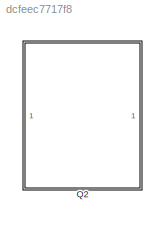
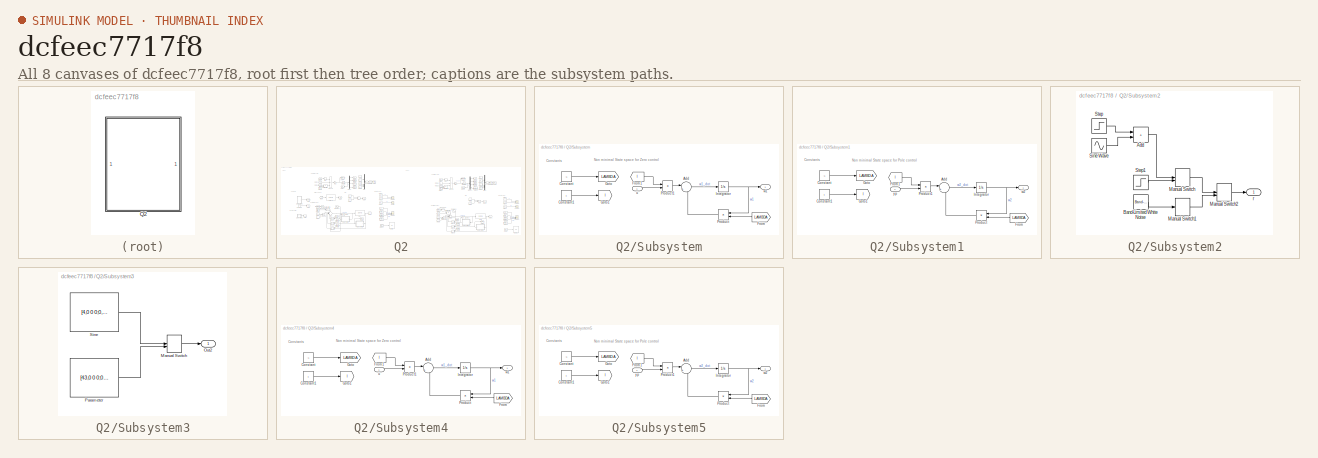
[diagram: thumbnail index - all 8 canvases of the model, root first then tree order]
MODEL slx_dcfeec7717f8
KIND model
CONFIG AbsTol = auto
CONFIG EnableMultiTasking = off
CONFIG FixedStep = 0.0001
CONFIG MaxStep = auto
CONFIG MinStep = auto
CONFIG RelTol = 1e-3
CONFIG SampleTimeConstraint = Unconstrained
CONFIG SolverName = VariableStepAuto
CONFIG StartTime = 0.0
CONFIG StopTime = 20
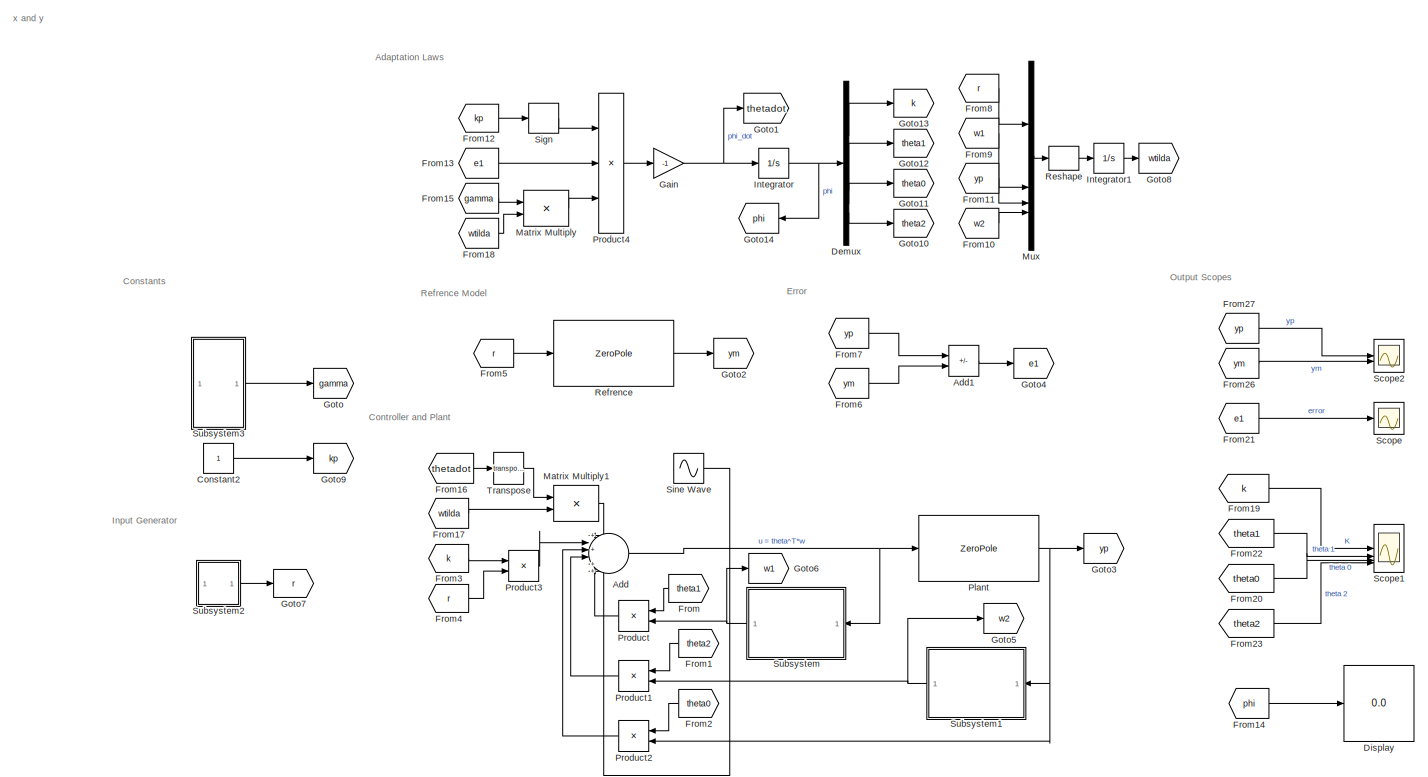
[diagram: Q2 - part 1/2, left side, full height]
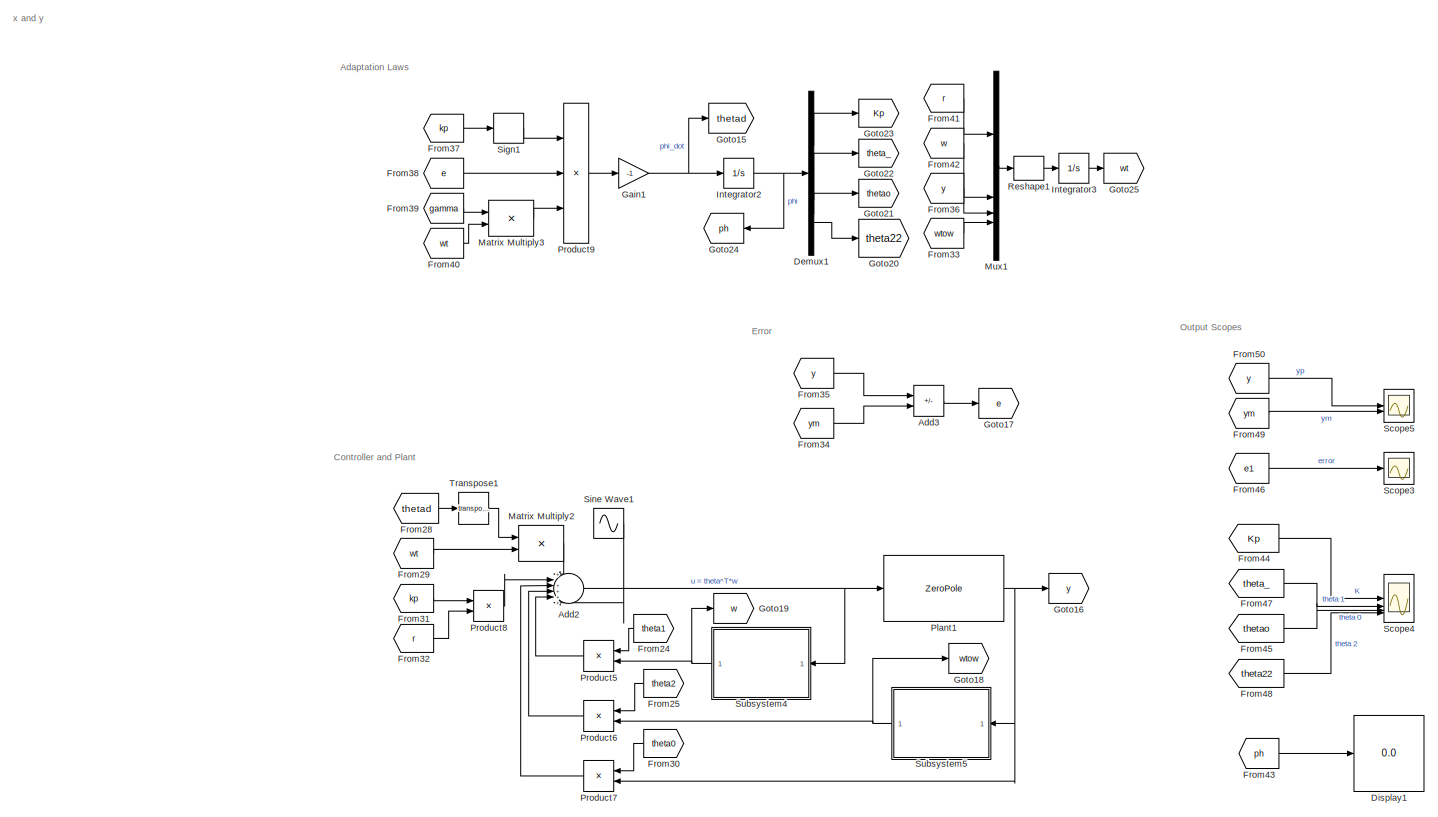
[diagram: Q2 - part 2/2, right side, full height]
BLOCK [SubSystem] Q2
BLOCK [Sum] Q2/Add
  Inputs = +|+|++++
BLOCK [Sum] Q2/Add1
  IconShape = rectangular
  Inputs = +-
BLOCK [Sum] Q2/Add2
  Inputs = +|+++++
BLOCK [Sum] Q2/Add3
  IconShape = rectangular
  Inputs = +-
BLOCK [Constant] Q2/Constant2
BLOCK [Demux] Q2/Demux
BLOCK [Demux] Q2/Demux1
BLOCK [Display] Q2/Display
  Decimation = 1
BLOCK [Display] Q2/Display1
  Decimation = 1
BLOCK [From] Q2/From
  GotoTag = theta1
  NameLocation = top
BLOCK [From] Q2/From1
  GotoTag = theta2
  NameLocation = top
BLOCK [From] Q2/From10
  GotoTag = w2
BLOCK [From] Q2/From11
  GotoTag = yp
BLOCK [From] Q2/From12
  GotoTag = kp
BLOCK [From] Q2/From13
  GotoTag = e1
BLOCK [From] Q2/From14
  GotoTag = phi
  NameLocation = top
BLOCK [From] Q2/From15
  GotoTag = gamma
BLOCK [From] Q2/From16
  GotoTag = thetadot
BLOCK [From] Q2/From17
  GotoTag = wtilda
BLOCK [From] Q2/From18
  GotoTag = wtilda
BLOCK [From] Q2/From19
  GotoTag = k
BLOCK [From] Q2/From2
  GotoTag = theta0
  NameLocation = top
BLOCK [From] Q2/From20
  GotoTag = theta0
BLOCK [From] Q2/From21
  GotoTag = e1
BLOCK [From] Q2/From22
  GotoTag = theta1
BLOCK [From] Q2/From23
  GotoTag = theta2
BLOCK [From] Q2/From24
  GotoTag = theta1
  NameLocation = top
BLOCK [From] Q2/From25
  GotoTag = theta2
  NameLocation = top
BLOCK [From] Q2/From26
  GotoTag = ym
BLOCK [From] Q2/From27
  GotoTag = yp
BLOCK [From] Q2/From28
  GotoTag = thetad
BLOCK [From] Q2/From29
  GotoTag = wt
BLOCK [From] Q2/From3
  GotoTag = k
BLOCK [From] Q2/From30
  GotoTag = theta0
  NameLocation = top
BLOCK [From] Q2/From31
  GotoTag = kp
BLOCK [From] Q2/From32
  GotoTag = r
BLOCK [From] Q2/From33
  GotoTag = wtow
BLOCK [From] Q2/From34
  GotoTag = ym
BLOCK [From] Q2/From35
  GotoTag = y
BLOCK [From] Q2/From36
  GotoTag = y
BLOCK [From] Q2/From37
  GotoTag = kp
BLOCK [From] Q2/From38
  GotoTag = e
BLOCK [From] Q2/From39
  GotoTag = gamma
BLOCK [From] Q2/From4
  GotoTag = r
BLOCK [From] Q2/From40
  GotoTag = wt
BLOCK [From] Q2/From41
  GotoTag = r
BLOCK [From] Q2/From42
  GotoTag = w
BLOCK [From] Q2/From43
  GotoTag = ph
  NameLocation = top
BLOCK [From] Q2/From44
  GotoTag = Kp
BLOCK [From] Q2/From45
  GotoTag = thetao
BLOCK [From] Q2/From46
  GotoTag = e1
BLOCK [From] Q2/From47
  GotoTag = theta_
BLOCK [From] Q2/From48
  GotoTag = theta22
BLOCK [From] Q2/From49
  GotoTag = ym
BLOCK [From] Q2/From5
  GotoTag = r
BLOCK [From] Q2/From50
  GotoTag = y
BLOCK [From] Q2/From6
  GotoTag = ym
BLOCK [From] Q2/From7
  GotoTag = yp
BLOCK [From] Q2/From8
  GotoTag = r
BLOCK [From] Q2/From9
  GotoTag = w1
BLOCK [Gain] Q2/Gain
  Gain = -1
BLOCK [Gain] Q2/Gain1
  Gain = -1
BLOCK [Goto] Q2/Goto
  GotoTag = gamma
BLOCK [Goto] Q2/Goto1
  GotoTag = thetadot
BLOCK [Goto] Q2/Goto10
  GotoTag = theta2
  NameLocation = top
BLOCK [Goto] Q2/Goto11
  GotoTag = theta0
  NameLocation = top
BLOCK [Goto] Q2/Goto12
  GotoTag = theta1
  NameLocation = top
BLOCK [Goto] Q2/Goto13
  GotoTag = k
BLOCK [Goto] Q2/Goto14
  GotoTag = phi
  NameLocation = top
BLOCK [Goto] Q2/Goto15
  GotoTag = thetad
BLOCK [Goto] Q2/Goto16
  GotoTag = y
BLOCK [Goto] Q2/Goto17
  GotoTag = e
BLOCK [Goto] Q2/Goto18
  GotoTag = wtow
BLOCK [Goto] Q2/Goto19
  GotoTag = w
BLOCK [Goto] Q2/Goto2
  GotoTag = ym
BLOCK [Goto] Q2/Goto20
  GotoTag = theta22
  NameLocation = top
BLOCK [Goto] Q2/Goto21
  GotoTag = thetao
  NameLocation = top
BLOCK [Goto] Q2/Goto22
  GotoTag = theta_
  NameLocation = top
BLOCK [Goto] Q2/Goto23
  GotoTag = Kp
BLOCK [Goto] Q2/Goto24
  GotoTag = ph
  NameLocation = top
BLOCK [Goto] Q2/Goto25
  GotoTag = wt
BLOCK [Goto] Q2/Goto3
  GotoTag = yp
BLOCK [Goto] Q2/Goto4
  GotoTag = e1
BLOCK [Goto] Q2/Goto5
  GotoTag = w2
BLOCK [Goto] Q2/Goto6
  GotoTag = w1
BLOCK [Goto] Q2/Goto7
  GotoTag = r
BLOCK [Goto] Q2/Goto8
  GotoTag = wtilda
BLOCK [Goto] Q2/Goto9
  GotoTag = kp
BLOCK [Integrator] Q2/Integrator
BLOCK [Integrator] Q2/Integrator1
BLOCK [Integrator] Q2/Integrator2
BLOCK [Integrator] Q2/Integrator3
BLOCK [Product] Q2/Matrix Multiply
  Multiplication = Matrix(*)
BLOCK [Product] Q2/Matrix Multiply1
  Multiplication = Matrix(*)
BLOCK [Product] Q2/Matrix Multiply2
  Multiplication = Matrix(*)
BLOCK [Product] Q2/Matrix Multiply3
  Multiplication = Matrix(*)
BLOCK [Mux] Q2/Mux
  DisplayOption = bar
BLOCK [Mux] Q2/Mux1
  DisplayOption = bar
BLOCK [ZeroPole] Q2/Plant
  Gain = 1/2.5
  Poles = [0 0]
  Zeros = []
BLOCK [ZeroPole] Q2/Plant1
  Gain = 1/0.03
  Poles = [0 0]
  Zeros = []
BLOCK [Product] Q2/Product
  NameLocation = top
BLOCK [Product] Q2/Product1
  NameLocation = top
BLOCK [Product] Q2/Product2
  NameLocation = top
BLOCK [Product] Q2/Product3
BLOCK [Product] Q2/Product4
  Inputs = 3
BLOCK [Product] Q2/Product5
  NameLocation = top
BLOCK [Product] Q2/Product6
  NameLocation = top
BLOCK [Product] Q2/Product7
  NameLocation = top
BLOCK [Product] Q2/Product8
BLOCK [Product] Q2/Product9
  Inputs = 3
BLOCK [ZeroPole] Q2/Refrence
  Gain = 1
  Poles = [-1 -1]
  Zeros = []
BLOCK [Reshape] Q2/Reshape
  OutputDimensionality = Column vector (2-D)
BLOCK [Reshape] Q2/Reshape1
  OutputDimensionality = Column vector (2-D)
BLOCK [Scope] Q2/Scope
  Floating = off
  NumInputPorts = 1
  ScopeSpecificationString = Simulink.scopes.TimeScopeBlockCfg('CurrentConfiguration', extmgr.ConfigurationSet(extmgr.Configuration('Core','General UI',true,'FigureColor',[1 1 1]),extmgr.Configuration('Core','Source UI',true),extmgr.Configuration('Sources','WiredSimulink',true,'DataLoggingVariableName','ScopeData1'),extmgr.Configuration('Visuals','Time Domain',true,'SerializedDisplays',{struct('MinYLimReal','-0.04726','MaxYLi...<+2243ch>
BLOCK [Scope] Q2/Scope1
  Floating = off
  NumInputPorts = 4
  ScopeSpecificationString = Simulink.scopes.TimeScopeBlockCfg('CurrentConfiguration', extmgr.ConfigurationSet(extmgr.Configuration('Core','General UI',true,'FigureColor',[1 1 1]),extmgr.Configuration('Core','Source UI',true),extmgr.Configuration('Sources','WiredSimulink',true,'DataLoggingVariableName','ScopeData2'),extmgr.Configuration('Visuals','Time Domain',true,'SerializedDisplays',{struct('MinYLimReal','-0.1515','MaxYLim...<+4975ch>
BLOCK [Scope] Q2/Scope2
  Floating = off
  NumInputPorts = 2
  ScopeSpecificationString = Simulink.scopes.TimeScopeBlockCfg('CurrentConfiguration', extmgr.ConfigurationSet(extmgr.Configuration('Core','General UI',true,'FigureColor',[1 1 1]),extmgr.Configuration('Core','Source UI',true),extmgr.Configuration('Sources','WiredSimulink',true,'DataLoggingVariableName','ScopeData3'),extmgr.Configuration('Visuals','Time Domain',true,'SerializedDisplays',{struct('MinYLimReal','-0.12503','MaxYLi...<+2205ch>
BLOCK [Scope] Q2/Scope3
  Floating = off
  NumInputPorts = 1
  ScopeSpecificationString = Simulink.scopes.TimeScopeBlockCfg('CurrentConfiguration', extmgr.ConfigurationSet(extmgr.Configuration('Core','General UI',true,'FigureColor',[1 1 1]),extmgr.Configuration('Core','Source UI',true),extmgr.Configuration('Sources','WiredSimulink',true,'DataLoggingVariableName','ScopeData1'),extmgr.Configuration('Visuals','Time Domain',true,'SerializedDisplays',{struct('MinYLimReal','-0.04726','MaxYLi...<+2241ch>
BLOCK [Scope] Q2/Scope4
  Floating = off
  NumInputPorts = 4
  ScopeSpecificationString = Simulink.scopes.TimeScopeBlockCfg('CurrentConfiguration', extmgr.ConfigurationSet(extmgr.Configuration('Core','General UI',true,'FigureColor',[1 1 1]),extmgr.Configuration('Core','Source UI',true),extmgr.Configuration('Sources','WiredSimulink',true,'DataLoggingVariableName','ScopeData2'),extmgr.Configuration('Visuals','Time Domain',true,'SerializedDisplays',{struct('MinYLimReal','-0.15282','MaxYLi...<+4977ch>
BLOCK [Scope] Q2/Scope5
  Floating = off
  NumInputPorts = 2
  ScopeSpecificationString = Simulink.scopes.TimeScopeBlockCfg('CurrentConfiguration', extmgr.ConfigurationSet(extmgr.Configuration('Core','General UI',true,'FigureColor',[1 1 1]),extmgr.Configuration('Core','Source UI',true),extmgr.Configuration('Sources','WiredSimulink',true,'DataLoggingVariableName','ScopeData3'),extmgr.Configuration('Visuals','Time Domain',true,'SerializedDisplays',{struct('MinYLimReal','-1.44577','MaxYLi...<+2208ch>
BLOCK [Signum] Q2/Sign
BLOCK [Signum] Q2/Sign1
BLOCK [Sin] Q2/Sine Wave
  SampleTime = 0
BLOCK [Sin] Q2/Sine Wave1
  SampleTime = 0
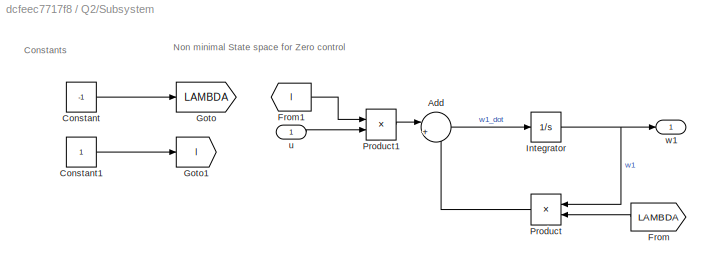
BLOCK [SubSystem] Q2/Subsystem
  NameLocation = top
BLOCK [Sum] Q2/Subsystem/Add
  Inputs = |++
BLOCK [Constant] Q2/Subsystem/Constant
  Value = -1
BLOCK [Constant] Q2/Subsystem/Constant1
BLOCK [From] Q2/Subsystem/From
  GotoTag = LAMBDA
  NameLocation = top
BLOCK [From] Q2/Subsystem/From1
  GotoTag = l
BLOCK [Goto] Q2/Subsystem/Goto
  GotoTag = LAMBDA
BLOCK [Goto] Q2/Subsystem/Goto1
  GotoTag = l
BLOCK [Integrator] Q2/Subsystem/Integrator
BLOCK [Product] Q2/Subsystem/Product
  NameLocation = top
BLOCK [Product] Q2/Subsystem/Product1
BLOCK [Inport] Q2/Subsystem/u
BLOCK [Outport] Q2/Subsystem/w1
BLOCK [SubSystem] Q2/Subsystem1
  NameLocation = top
BLOCK [Sum] Q2/Subsystem1/Add
  Inputs = |++
BLOCK [Constant] Q2/Subsystem1/Constant
  Value = -1
BLOCK [Constant] Q2/Subsystem1/Constant1
BLOCK [From] Q2/Subsystem1/From
  GotoTag = LAMBDA
  NameLocation = top
BLOCK [From] Q2/Subsystem1/From1
  GotoTag = l
BLOCK [Goto] Q2/Subsystem1/Goto
  GotoTag = LAMBDA
BLOCK [Goto] Q2/Subsystem1/Goto1
  GotoTag = l
BLOCK [Integrator] Q2/Subsystem1/Integrator
BLOCK [Product] Q2/Subsystem1/Product
  NameLocation = top
BLOCK [Product] Q2/Subsystem1/Product1
BLOCK [Outport] Q2/Subsystem1/w2
BLOCK [Inport] Q2/Subsystem1/yp
BLOCK [SubSystem] Q2/Subsystem2
BLOCK [Sum] Q2/Subsystem2/Add
  IconShape = rectangular
BLOCK [Reference] Q2/Subsystem2/Band-Limited White Noise  REF=simulink/Sources/Band-Limited
White Noise
  SourceBlock = simulink/Sources/Band-Limited\nWhite Noise
  SourceType = Band-Limited White Noise.
BLOCK [ManualSwitch] Q2/Subsystem2/Manual Switch
  CurrentSetting = 0
BLOCK [ManualSwitch] Q2/Subsystem2/Manual Switch1
BLOCK [ManualSwitch] Q2/Subsystem2/Manual Switch2
BLOCK [Sin] Q2/Subsystem2/Sine Wave
  SampleTime = 0
BLOCK [Step] Q2/Subsystem2/Step
  SampleTime = 0
  Time = 0
BLOCK [Step] Q2/Subsystem2/Step1
  SampleTime = 0
BLOCK [Outport] Q2/Subsystem2/r
BLOCK [SubSystem] Q2/Subsystem3
BLOCK [ManualSwitch] Q2/Subsystem3/Manual Switch
BLOCK [Outport] Q2/Subsystem3/Out2
BLOCK [Constant] Q2/Subsystem3/Parameter
  Value = [43,0 0 0;0,34,0,0;0,0,45,0;0,0,0,13]
BLOCK [Constant] Q2/Subsystem3/Sine
  Value = [4,0 0 0;0,95,0,0;0,0,20,0;0,0,0,7]
BLOCK [SubSystem] Q2/Subsystem4
  NameLocation = top
BLOCK [Sum] Q2/Subsystem4/Add
  Inputs = |++
BLOCK [Constant] Q2/Subsystem4/Constant
  Value = -1
BLOCK [Constant] Q2/Subsystem4/Constant1
BLOCK [From] Q2/Subsystem4/From
  GotoTag = LAMBDA
  NameLocation = top
BLOCK [From] Q2/Subsystem4/From1
  GotoTag = l
BLOCK [Goto] Q2/Subsystem4/Goto
  GotoTag = LAMBDA
BLOCK [Goto] Q2/Subsystem4/Goto1
  GotoTag = l
BLOCK [Integrator] Q2/Subsystem4/Integrator
BLOCK [Product] Q2/Subsystem4/Product
  NameLocation = top
BLOCK [Product] Q2/Subsystem4/Product1
BLOCK [Inport] Q2/Subsystem4/u
BLOCK [Outport] Q2/Subsystem4/w1
BLOCK [SubSystem] Q2/Subsystem5
  NameLocation = top
BLOCK [Sum] Q2/Subsystem5/Add
  Inputs = |++
BLOCK [Constant] Q2/Subsystem5/Constant
  Value = -1
BLOCK [Constant] Q2/Subsystem5/Constant1
BLOCK [From] Q2/Subsystem5/From
  GotoTag = LAMBDA
  NameLocation = top
BLOCK [From] Q2/Subsystem5/From1
  GotoTag = l
BLOCK [Goto] Q2/Subsystem5/Goto
  GotoTag = LAMBDA
BLOCK [Goto] Q2/Subsystem5/Goto1
  GotoTag = l
BLOCK [Integrator] Q2/Subsystem5/Integrator
BLOCK [Product] Q2/Subsystem5/Product
  NameLocation = top
BLOCK [Product] Q2/Subsystem5/Product1
BLOCK [Outport] Q2/Subsystem5/w2
BLOCK [Inport] Q2/Subsystem5/yp
BLOCK [Math] Q2/Transpose
  Operator = transpose
BLOCK [Math] Q2/Transpose1
  Operator = transpose
ANNOTATION Q2: Adaptation Laws
ANNOTATION Q2: Constants
ANNOTATION Q2: Controller and Plant
ANNOTATION Q2: Error
ANNOTATION Q2: Input Generator
ANNOTATION Q2: Output Scopes
ANNOTATION Q2: Refrence Model
ANNOTATION Q2: x and y
ANNOTATION Q2/Subsystem: Constants
ANNOTATION Q2/Subsystem: Non minimal State space for Zero control
ANNOTATION Q2/Subsystem1: Constants
ANNOTATION Q2/Subsystem1: Non minimal State space for Pole control
ANNOTATION Q2/Subsystem4: Constants
ANNOTATION Q2/Subsystem4: Non minimal State space for Zero control
ANNOTATION Q2/Subsystem5: Constants
ANNOTATION Q2/Subsystem5: Non minimal State space for Pole control
LINE Q2/Add1:1 -> Q2/Goto4:1
NET Q2/Add2:1 -> Q2/Plant1:1, Q2/Subsystem4:1
LINE Q2/Add3:1 -> Q2/Goto17:1
NET Q2/Add:1 -> Q2/Plant:1, Q2/Subsystem:1
LINE Q2/Constant2:1 -> Q2/Goto9:1
LINE Q2/Demux1:1 -> Q2/Goto23:1
LINE Q2/Demux1:2 -> Q2/Goto22:1
LINE Q2/Demux1:3 -> Q2/Goto21:1
LINE Q2/Demux1:4 -> Q2/Goto20:1
LINE Q2/Demux:1 -> Q2/Goto13:1
LINE Q2/Demux:2 -> Q2/Goto12:1
LINE Q2/Demux:3 -> Q2/Goto11:1
LINE Q2/Demux:4 -> Q2/Goto10:1
LINE Q2/From10:1 -> Q2/Mux:4
LINE Q2/From11:1 -> Q2/Mux:3
LINE Q2/From12:1 -> Q2/Sign:1
LINE Q2/From13:1 -> Q2/Product4:2
LINE Q2/From14:1 -> Q2/Display:1
LINE Q2/From15:1 -> Q2/Matrix Multiply:1
LINE Q2/From16:1 -> Q2/Transpose:1
LINE Q2/From17:1 -> Q2/Matrix Multiply1:2
LINE Q2/From18:1 -> Q2/Matrix Multiply:2
LINE Q2/From19:1 -> Q2/Scope1:1
LINE Q2/From1:1 -> Q2/Product1:1
LINE Q2/From20:1 -> Q2/Scope1:3
LINE Q2/From21:1 -> Q2/Scope:1
LINE Q2/From22:1 -> Q2/Scope1:2
LINE Q2/From23:1 -> Q2/Scope1:4
LINE Q2/From24:1 -> Q2/Product5:1
LINE Q2/From25:1 -> Q2/Product6:1
LINE Q2/From26:1 -> Q2/Scope2:2
LINE Q2/From27:1 -> Q2/Scope2:1
LINE Q2/From28:1 -> Q2/Transpose1:1
LINE Q2/From29:1 -> Q2/Matrix Multiply2:2
LINE Q2/From2:1 -> Q2/Product2:1
LINE Q2/From30:1 -> Q2/Product7:1
LINE Q2/From31:1 -> Q2/Product8:1
LINE Q2/From32:1 -> Q2/Product8:2
LINE Q2/From33:1 -> Q2/Mux1:4
LINE Q2/From34:1 -> Q2/Add3:2
LINE Q2/From35:1 -> Q2/Add3:1
LINE Q2/From36:1 -> Q2/Mux1:3
LINE Q2/From37:1 -> Q2/Sign1:1
LINE Q2/From38:1 -> Q2/Product9:2
LINE Q2/From39:1 -> Q2/Matrix Multiply3:1
LINE Q2/From3:1 -> Q2/Product3:1
LINE Q2/From40:1 -> Q2/Matrix Multiply3:2
LINE Q2/From41:1 -> Q2/Mux1:1
LINE Q2/From42:1 -> Q2/Mux1:2
LINE Q2/From43:1 -> Q2/Display1:1
LINE Q2/From44:1 -> Q2/Scope4:1
LINE Q2/From45:1 -> Q2/Scope4:3
LINE Q2/From46:1 -> Q2/Scope3:1
LINE Q2/From47:1 -> Q2/Scope4:2
LINE Q2/From48:1 -> Q2/Scope4:4
LINE Q2/From49:1 -> Q2/Scope5:2
LINE Q2/From4:1 -> Q2/Product3:2
LINE Q2/From50:1 -> Q2/Scope5:1
LINE Q2/From5:1 -> Q2/Refrence:1
LINE Q2/From6:1 -> Q2/Add1:2
LINE Q2/From7:1 -> Q2/Add1:1
LINE Q2/From8:1 -> Q2/Mux:1
LINE Q2/From9:1 -> Q2/Mux:2
LINE Q2/From:1 -> Q2/Product:1
NET Q2/Gain1:1 -> Q2/Goto15:1, Q2/Integrator2:1
NET Q2/Gain:1 -> Q2/Goto1:1, Q2/Integrator:1
LINE Q2/Integrator1:1 -> Q2/Goto8:1
NET Q2/Integrator2:1 -> Q2/Demux1:1, Q2/Goto24:1
LINE Q2/Integrator3:1 -> Q2/Goto25:1
NET Q2/Integrator:1 -> Q2/Demux:1, Q2/Goto14:1
LINE Q2/Matrix Multiply1:1 -> Q2/Add:1
LINE Q2/Matrix Multiply2:1 -> Q2/Add2:1
LINE Q2/Matrix Multiply3:1 -> Q2/Product9:3
LINE Q2/Matrix Multiply:1 -> Q2/Product4:3
LINE Q2/Mux1:1 -> Q2/Reshape1:1
LINE Q2/Mux:1 -> Q2/Reshape:1
NET Q2/Plant1:1 -> Q2/Goto16:1, Q2/Product7:2, Q2/Subsystem5:1
NET Q2/Plant:1 -> Q2/Goto3:1, Q2/Product2:2, Q2/Subsystem1:1
LINE Q2/Product1:1 -> Q2/Add:4
LINE Q2/Product2:1 -> Q2/Add:3
LINE Q2/Product3:1 -> Q2/Add:2
LINE Q2/Product4:1 -> Q2/Gain:1
LINE Q2/Product5:1 -> Q2/Add2:5
LINE Q2/Product6:1 -> Q2/Add2:4
LINE Q2/Product7:1 -> Q2/Add2:3
LINE Q2/Product8:1 -> Q2/Add2:2
LINE Q2/Product9:1 -> Q2/Gain1:1
LINE Q2/Product:1 -> Q2/Add:5
LINE Q2/Refrence:1 -> Q2/Goto2:1
LINE Q2/Reshape1:1 -> Q2/Integrator3:1
LINE Q2/Reshape:1 -> Q2/Integrator1:1
LINE Q2/Sign1:1 -> Q2/Product9:1
LINE Q2/Sign:1 -> Q2/Product4:1
LINE Q2/Sine Wave1:1 -> Q2/Add2:6
LINE Q2/Sine Wave:1 -> Q2/Add:6
LINE Q2/Subsystem/Add:1 -> Q2/Subsystem/Integrator:1
LINE Q2/Subsystem/Constant1:1 -> Q2/Subsystem/Goto1:1
LINE Q2/Subsystem/Constant:1 -> Q2/Subsystem/Goto:1
LINE Q2/Subsystem/From1:1 -> Q2/Subsystem/Product1:1
LINE Q2/Subsystem/From:1 -> Q2/Subsystem/Product:2
NET Q2/Subsystem/Integrator:1 -> Q2/Subsystem/Product:1, Q2/Subsystem/w1:1
LINE Q2/Subsystem/Product1:1 -> Q2/Subsystem/Add:1
LINE Q2/Subsystem/Product:1 -> Q2/Subsystem/Add:2
LINE Q2/Subsystem/u:1 -> Q2/Subsystem/Product1:2
LINE Q2/Subsystem1/Add:1 -> Q2/Subsystem1/Integrator:1
LINE Q2/Subsystem1/Constant1:1 -> Q2/Subsystem1/Goto1:1
LINE Q2/Subsystem1/Constant:1 -> Q2/Subsystem1/Goto:1
LINE Q2/Subsystem1/From1:1 -> Q2/Subsystem1/Product1:1
LINE Q2/Subsystem1/From:1 -> Q2/Subsystem1/Product:2
NET Q2/Subsystem1/Integrator:1 -> Q2/Subsystem1/Product:1, Q2/Subsystem1/w2:1
LINE Q2/Subsystem1/Product1:1 -> Q2/Subsystem1/Add:1
LINE Q2/Subsystem1/Product:1 -> Q2/Subsystem1/Add:2
LINE Q2/Subsystem1/yp:1 -> Q2/Subsystem1/Product1:2
NET Q2/Subsystem1:1 -> Q2/Goto5:1, Q2/Product1:2
LINE Q2/Subsystem2/Add:1 -> Q2/Subsystem2/Manual Switch:1
LINE Q2/Subsystem2/Band-Limited White Noise:1 -> Q2/Subsystem2/Manual Switch1:1
LINE Q2/Subsystem2/Manual Switch1:1 -> Q2/Subsystem2/Manual Switch2:2
LINE Q2/Subsystem2/Manual Switch2:1 -> Q2/Subsystem2/r:1
LINE Q2/Subsystem2/Manual Switch:1 -> Q2/Subsystem2/Manual Switch2:1
LINE Q2/Subsystem2/Sine Wave:1 -> Q2/Subsystem2/Add:2
LINE Q2/Subsystem2/Step1:1 -> Q2/Subsystem2/Manual Switch:2
LINE Q2/Subsystem2/Step:1 -> Q2/Subsystem2/Add:1
LINE Q2/Subsystem2:1 -> Q2/Goto7:1
LINE Q2/Subsystem3/Manual Switch:1 -> Q2/Subsystem3/Out2:1
LINE Q2/Subsystem3/Parameter:1 -> Q2/Subsystem3/Manual Switch:2
LINE Q2/Subsystem3/Sine:1 -> Q2/Subsystem3/Manual Switch:1
LINE Q2/Subsystem3:1 -> Q2/Goto:1
LINE Q2/Subsystem4/Add:1 -> Q2/Subsystem4/Integrator:1
LINE Q2/Subsystem4/Constant1:1 -> Q2/Subsystem4/Goto1:1
LINE Q2/Subsystem4/Constant:1 -> Q2/Subsystem4/Goto:1
LINE Q2/Subsystem4/From1:1 -> Q2/Subsystem4/Product1:1
LINE Q2/Subsystem4/From:1 -> Q2/Subsystem4/Product:2
NET Q2/Subsystem4/Integrator:1 -> Q2/Subsystem4/Product:1, Q2/Subsystem4/w1:1
LINE Q2/Subsystem4/Product1:1 -> Q2/Subsystem4/Add:1
LINE Q2/Subsystem4/Product:1 -> Q2/Subsystem4/Add:2
LINE Q2/Subsystem4/u:1 -> Q2/Subsystem4/Product1:2
NET Q2/Subsystem4:1 -> Q2/Goto19:1, Q2/Product5:2
LINE Q2/Subsystem5/Add:1 -> Q2/Subsystem5/Integrator:1
LINE Q2/Subsystem5/Constant1:1 -> Q2/Subsystem5/Goto1:1
LINE Q2/Subsystem5/Constant:1 -> Q2/Subsystem5/Goto:1
LINE Q2/Subsystem5/From1:1 -> Q2/Subsystem5/Product1:1
LINE Q2/Subsystem5/From:1 -> Q2/Subsystem5/Product:2
NET Q2/Subsystem5/Integrator:1 -> Q2/Subsystem5/Product:1, Q2/Subsystem5/w2:1
LINE Q2/Subsystem5/Product1:1 -> Q2/Subsystem5/Add:1
LINE Q2/Subsystem5/Product:1 -> Q2/Subsystem5/Add:2
LINE Q2/Subsystem5/yp:1 -> Q2/Subsystem5/Product1:2
NET Q2/Subsystem5:1 -> Q2/Goto18:1, Q2/Product6:2
NET Q2/Subsystem:1 -> Q2/Goto6:1, Q2/Product:2
LINE Q2/Transpose1:1 -> Q2/Matrix Multiply2:1
LINE Q2/Transpose:1 -> Q2/Matrix Multiply1:1
note: NET lines group one-source signal fan-out (src -> all destinations, sorted); 1:1 wires keep LINE
